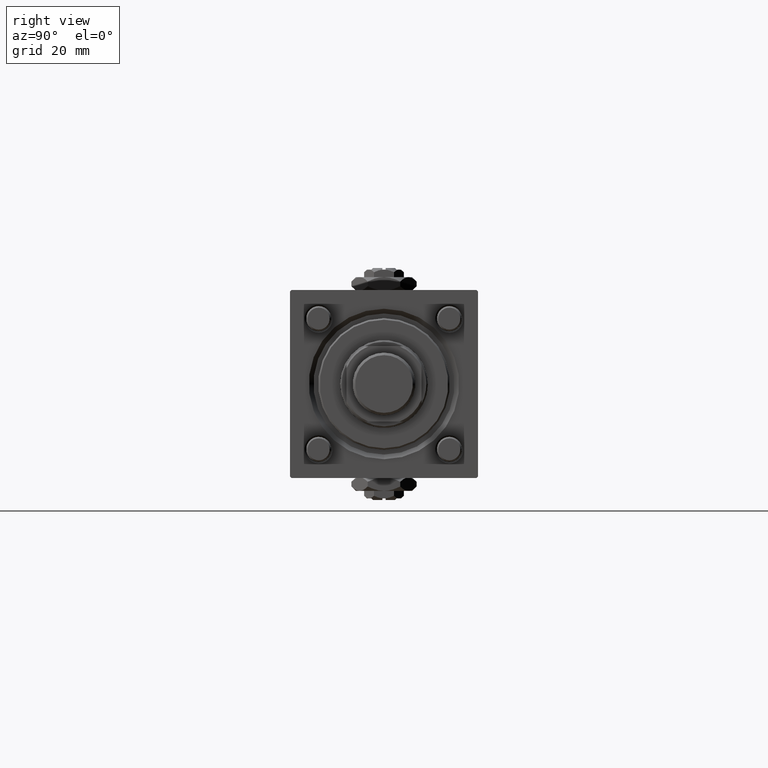
[diagram: clean part render]
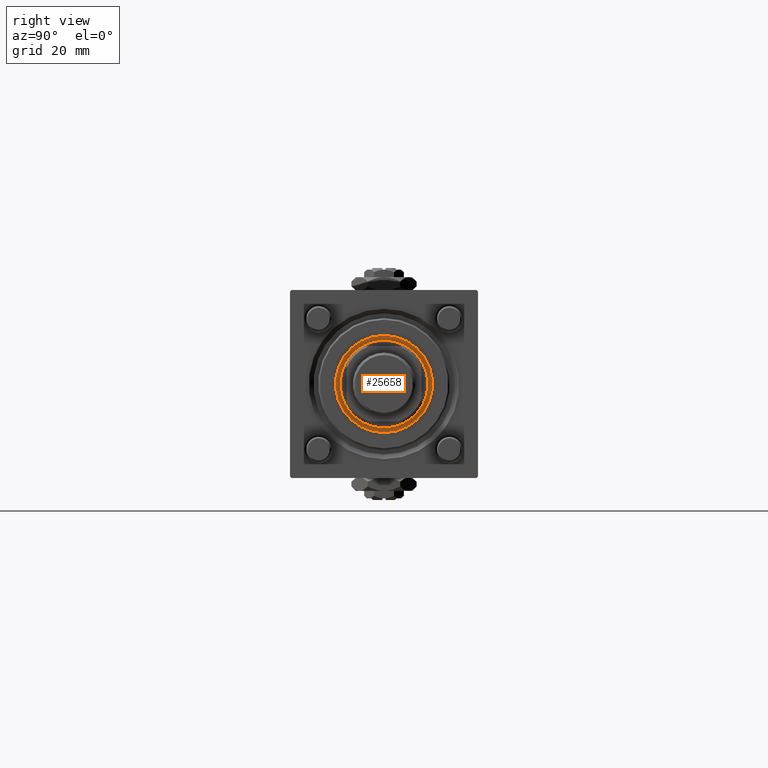
[diagram: same view with one face highlighted and labeled with its STEP entity id]
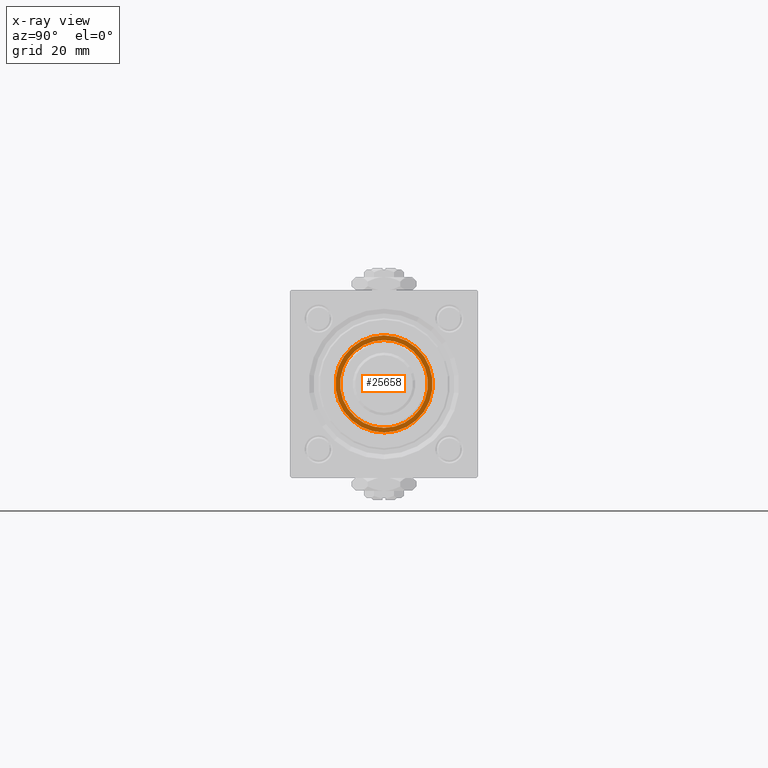
[diagram: x-ray of the same camera — body ghosted, the highlighted face saturated]
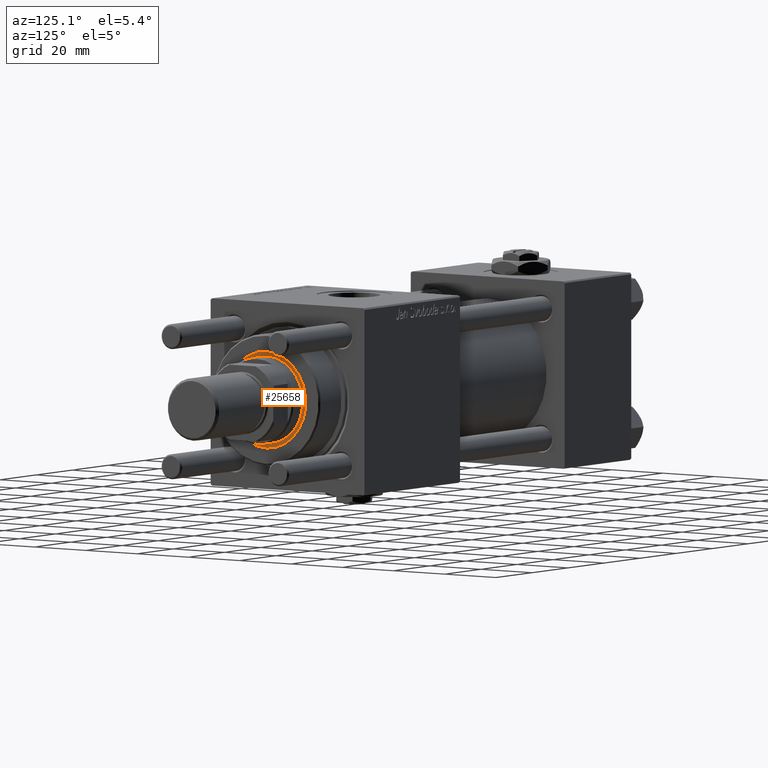
[diagram: same view with one face highlighted and labeled with its STEP entity id]
A machine part, right view. The second image highlights one B-rep face of the part: STEP entity #25658.
The next image is the same camera in x-ray: the body ghosted, the highlighted face saturated — about 0% of this face is hidden behind the body in this view.
A second angle (auxiliary view) of the same face is appended — the face is thin or edge-on in the first view.
In plain terms, the highlighted planar face has unit normal (1, 0, 0).
Its self-contained STEP definition (entity closure, byte-faithful):
#873 = DIRECTION ( 'NONE',  ( 0.000000000000000000, 0.000000000000000000, 1.000000000000000000 ) ) ;
#3673 = CARTESIAN_POINT ( 'NONE',  ( 0.000000000000000000, 0.000000000000000000, 40.20000000000000284 ) ) ;
#6474 = ORIENTED_EDGE ( 'NONE', *, *, #36922, .T. ) ;
#10690 = EDGE_CURVE ( 'NONE', #32026, #42849, #57292, .T. ) ;
#11194 = VERTEX_POINT ( 'NONE', #21573 ) ;
#11763 = DIRECTION ( 'NONE',  ( -0.000000000000000000, -0.000000000000000000, -1.000000000000000000 ) ) ;
#12253 = AXIS2_PLACEMENT_3D ( 'NONE', #34433, #44627, #52749 ) ;
#12773 = AXIS2_PLACEMENT_3D ( 'NONE', #22113, #50054, #22704 ) ;
#14335 = CARTESIAN_POINT ( 'NONE',  ( -14.00000000000000178, 1.714505518806294835E-15, 40.20000000000000284 ) ) ;
#16556 = DIRECTION ( 'NONE',  ( 1.000000000000000000, 0.000000000000000000, 0.000000000000000000 ) ) ;
#19703 = EDGE_LOOP ( 'NONE', ( #6474, #28335 ) ) ;
#19985 = ORIENTED_EDGE ( 'NONE', *, *, #10690, .T. ) ;
#20287 = FACE_BOUND ( 'NONE', #19703, .T. ) ;
#21573 = CARTESIAN_POINT ( 'NONE',  ( 14.00000000000000178, 0.000000000000000000, 40.20000000000000284 ) ) ;
#22113 = CARTESIAN_POINT ( 'NONE',  ( 0.000000000000000000, 0.000000000000000000, 40.20000000000000284 ) ) ;
#22704 = DIRECTION ( 'NONE',  ( 1.000000000000000000, 0.000000000000000000, 0.000000000000000000 ) ) ;
#25658 = ADVANCED_FACE ( 'NONE', ( #46742, #20287 ), #38600, .T. ) ;
#28335 = ORIENTED_EDGE ( 'NONE', *, *, #36011, .T. ) ;
#28385 = CIRCLE ( 'NONE', #34110, 15.50000000000000000 ) ;
#29144 = CARTESIAN_POINT ( 'NONE',  ( 15.50000000000000000, 0.000000000000000000, 40.20000000000000284 ) ) ;
#32026 = VERTEX_POINT ( 'NONE', #58559 ) ;
#32946 = DIRECTION ( 'NONE',  ( 1.000000000000000000, 0.000000000000000000, -0.000000000000000000 ) ) ;
#33810 = DIRECTION ( 'NONE',  ( 0.000000000000000000, 0.000000000000000000, 1.000000000000000000 ) ) ;
#34110 = AXIS2_PLACEMENT_3D ( 'NONE', #47063, #873, #41980 ) ;
#34433 = CARTESIAN_POINT ( 'NONE',  ( 0.000000000000000000, 0.000000000000000000, 40.20000000000000284 ) ) ;
#34792 = AXIS2_PLACEMENT_3D ( 'NONE', #3673, #11763, #16556 ) ;
#35173 = EDGE_CURVE ( 'NONE', #42849, #32026, #28385, .T. ) ;
#36011 = EDGE_CURVE ( 'NONE', #38682, #11194, #56860, .T. ) ;
#36922 = EDGE_CURVE ( 'NONE', #11194, #38682, #38645, .T. ) ;
#38600 = PLANE ( 'NONE',  #40400 ) ;
#38645 = CIRCLE ( 'NONE', #12773, 14.00000000000000178 ) ;
#38682 = VERTEX_POINT ( 'NONE', #14335 ) ;
#39385 = ORIENTED_EDGE ( 'NONE', *, *, #35173, .T. ) ;
#40400 = AXIS2_PLACEMENT_3D ( 'NONE', #51540, #33810, #32946 ) ;
#41980 = DIRECTION ( 'NONE',  ( 1.000000000000000000, 0.000000000000000000, 0.000000000000000000 ) ) ;
#42849 = VERTEX_POINT ( 'NONE', #29144 ) ;
#44627 = DIRECTION ( 'NONE',  ( 0.000000000000000000, 0.000000000000000000, 1.000000000000000000 ) ) ;
#46742 = FACE_OUTER_BOUND ( 'NONE', #52934, .T. ) ;
#47063 = CARTESIAN_POINT ( 'NONE',  ( 0.000000000000000000, 0.000000000000000000, 40.20000000000000284 ) ) ;
#50054 = DIRECTION ( 'NONE',  ( -0.000000000000000000, -0.000000000000000000, -1.000000000000000000 ) ) ;
#51540 = CARTESIAN_POINT ( 'NONE',  ( 0.000000000000000000, 0.000000000000000000, 40.20000000000000284 ) ) ;
#52749 = DIRECTION ( 'NONE',  ( 1.000000000000000000, 0.000000000000000000, 0.000000000000000000 ) ) ;
#52934 = EDGE_LOOP ( 'NONE', ( #39385, #19985 ) ) ;
#56860 = CIRCLE ( 'NONE', #34792, 14.00000000000000178 ) ;
#57292 = CIRCLE ( 'NONE', #12253, 15.50000000000000000 ) ;
#58559 = CARTESIAN_POINT ( 'NONE',  ( -15.50000000000000000, 1.898202538678397557E-15, 40.20000000000000284 ) ) ;